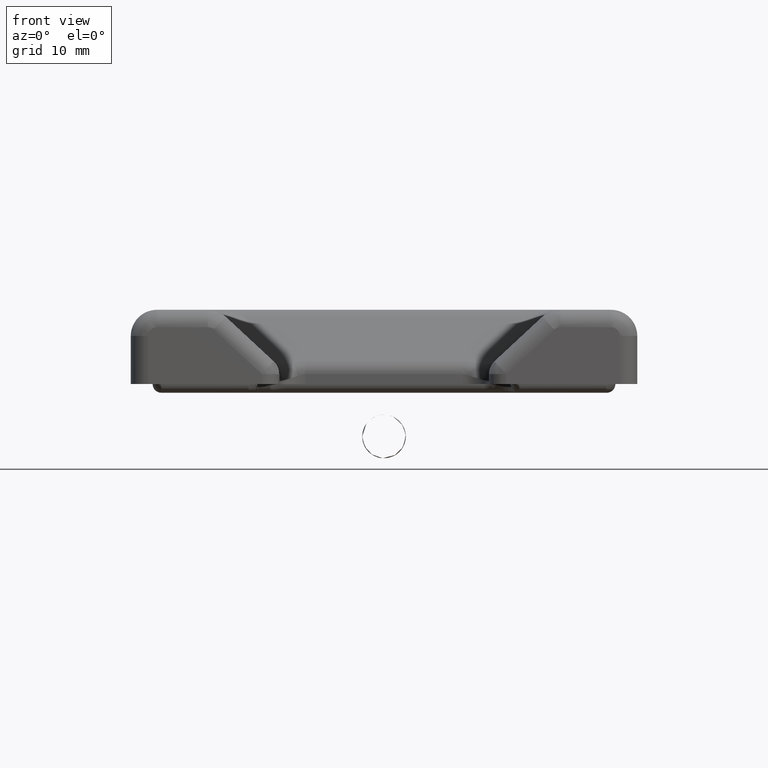
[diagram: clean part render]
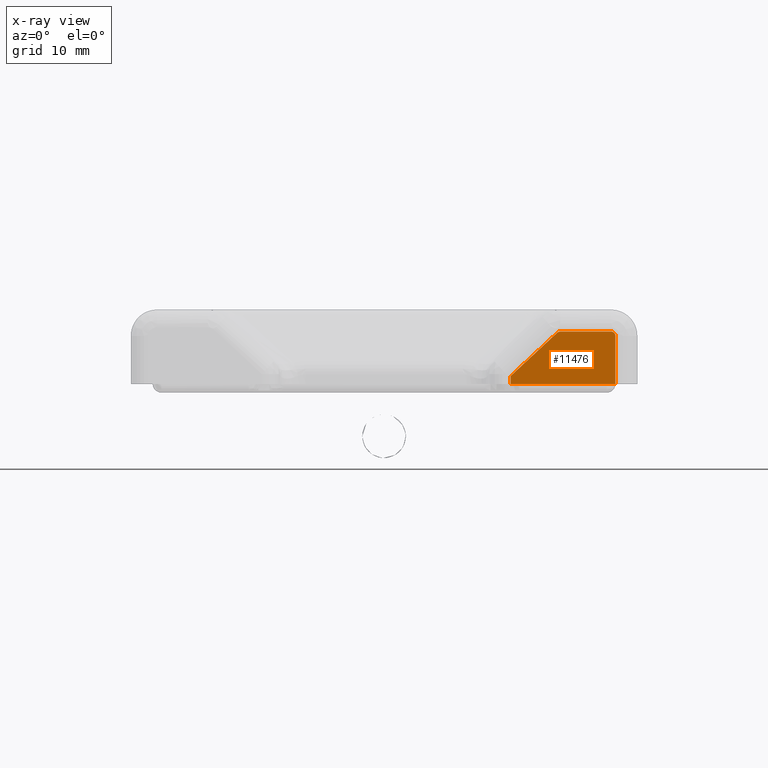
[diagram: x-ray — body ghosted, one internal face saturated and labeled with its STEP entity id]
A machine part, front view, then the same camera in x-ray: the body is ghosted and one INTERNAL B-rep face — a face not visible from any outside direction — is saturated and labeled: STEP entity #11476.
In plain terms, the highlighted face is a freeform B-spline surface patch.
Its self-contained STEP definition (entity closure, byte-faithful):
#11404=CARTESIAN_POINT('',(13.900600024172000,-55.999999999868997,0.700300011628952));
#11405=CARTESIAN_POINT('',(27.099400299521928,-55.999999999868997,0.700300011628952));
#11406=CARTESIAN_POINT('',(13.900600024172000,-55.999999999868997,7.299700149308386));
#11407=CARTESIAN_POINT('',(27.099400299521928,-55.999999999868997,7.299700149308386));
#11408=B_SPLINE_SURFACE_WITH_KNOTS('',1,1,((#11404,#11406),(#11405,#11407)),.UNSPECIFIED.,.F.,.F.,.U.,(2,2),(2,2),(0.0,13.198800275349930),(0.0,6.599400137679433),.UNSPECIFIED.);
#11409=CARTESIAN_POINT('',(14.500000000913740,-55.999999999868997,1.000000000000024));
#11410=VERTEX_POINT('',#11409);
#11411=CARTESIAN_POINT('',(26.500000000915101,-55.999999999868997,1.000000000000024));
#11412=VERTEX_POINT('',#11411);
#11413=CARTESIAN_POINT('',(14.500000000913740,-55.999999999868997,1.000000000000024));
#11414=CARTESIAN_POINT('',(26.500000000915101,-55.999999999868997,1.000000000000024));
#11415=QUASI_UNIFORM_CURVE('',1,(#11413,#11414),.UNSPECIFIED.,.F.,.U.);
#11416=EDGE_CURVE('',#11410,#11412,#11415,.T.);
#11417=ORIENTED_EDGE('',*,*,#11416,.F.);
#11418=CARTESIAN_POINT('',(14.500000000913740,-55.999999999868997,1.909826218819370));
#11419=VERTEX_POINT('',#11418);
#11420=CARTESIAN_POINT('',(14.500000000913740,-55.999999999868997,1.000000000000024));
#11421=CARTESIAN_POINT('',(14.500000000913740,-55.999999999868997,1.909826218819370));
#11422=QUASI_UNIFORM_CURVE('',1,(#11420,#11421),.UNSPECIFIED.,.F.,.U.);
#11423=EDGE_CURVE('',#11410,#11419,#11422,.T.);
#11424=ORIENTED_EDGE('',*,*,#11423,.T.);
#11425=CARTESIAN_POINT('',(19.837845183928948,-55.999999999868997,6.866396745820731));
#11426=VERTEX_POINT('',#11425);
#11427=CARTESIAN_POINT('',(14.500000000913740,-55.999999999868997,1.909826218819370));
#11428=CARTESIAN_POINT('',(19.837845183928948,-55.999999999868997,6.866396745820731));
#11429=QUASI_UNIFORM_CURVE('',1,(#11427,#11428),.UNSPECIFIED.,.F.,.U.);
#11430=EDGE_CURVE('',#11419,#11426,#11429,.T.);
#11431=ORIENTED_EDGE('',*,*,#11430,.T.);
#11432=CARTESIAN_POINT('',(20.178070733609552,-55.999999999868997,7.000000000004771));
#11433=VERTEX_POINT('',#11432);
#11434=CARTESIAN_POINT('',(20.178070733609552,-55.999999999868997,7.000000000004770));
#11435=CARTESIAN_POINT('',(19.981725611514140,-55.999999999869004,7.000000000004770));
#11436=CARTESIAN_POINT('',(19.837845183928948,-55.999999999868997,6.866396745820738));
#11444=(BOUNDED_CURVE()B_SPLINE_CURVE(2,(#11434,#11435,#11436),.UNSPECIFIED.,.F.,.U.)CURVE()GEOMETRIC_REPRESENTATION_ITEM()QUASI_UNIFORM_CURVE()RATIONAL_B_SPLINE_CURVE((1.0,0.930804354209824,1.0))REPRESENTATION_ITEM(''));
#11445=EDGE_CURVE('',#11433,#11426,#11444,.T.);
#11446=ORIENTED_EDGE('',*,*,#11445,.F.);
#11447=CARTESIAN_POINT('',(26.000000000915101,-55.999999999868997,7.000000000004771));
#11448=VERTEX_POINT('',#11447);
#11449=CARTESIAN_POINT('',(20.178070733609552,-55.999999999868997,7.000000000004771));
#11450=CARTESIAN_POINT('',(26.000000000915101,-55.999999999868997,7.000000000004771));
#11451=QUASI_UNIFORM_CURVE('',1,(#11449,#11450),.UNSPECIFIED.,.F.,.U.);
#11452=EDGE_CURVE('',#11433,#11448,#11451,.T.);
#11453=ORIENTED_EDGE('',*,*,#11452,.T.);
#11454=CARTESIAN_POINT('',(26.500000000915101,-55.999999999868997,6.500000000004770));
#11455=VERTEX_POINT('',#11454);
#11456=CARTESIAN_POINT('',(26.500000000915101,-55.999999999868997,6.500000000004770));
#11457=CARTESIAN_POINT('',(26.500000000915108,-55.999999999869011,7.000000000004771));
#11458=CARTESIAN_POINT('',(26.000000000915101,-55.999999999868997,7.000000000004770));
#11466=(BOUNDED_CURVE()B_SPLINE_CURVE(2,(#11456,#11457,#11458),.UNSPECIFIED.,.F.,.U.)CURVE()GEOMETRIC_REPRESENTATION_ITEM()QUASI_UNIFORM_CURVE()RATIONAL_B_SPLINE_CURVE((1.0,0.707106781186548,1.0))REPRESENTATION_ITEM(''));
#11467=EDGE_CURVE('',#11455,#11448,#11466,.T.);
#11468=ORIENTED_EDGE('',*,*,#11467,.F.);
#11469=CARTESIAN_POINT('',(26.500000000915101,-55.999999999868997,6.500000000004770));
#11470=CARTESIAN_POINT('',(26.500000000915101,-55.999999999868997,1.000000000000024));
#11471=QUASI_UNIFORM_CURVE('',1,(#11469,#11470),.UNSPECIFIED.,.F.,.U.);
#11472=EDGE_CURVE('',#11455,#11412,#11471,.T.);
#11473=ORIENTED_EDGE('',*,*,#11472,.T.);
#11474=EDGE_LOOP('',(#11417,#11424,#11431,#11446,#11453,#11468,#11473));
#11475=FACE_OUTER_BOUND('',#11474,.T.);
#11476=ADVANCED_FACE('',(#11475),#11408,.F.);